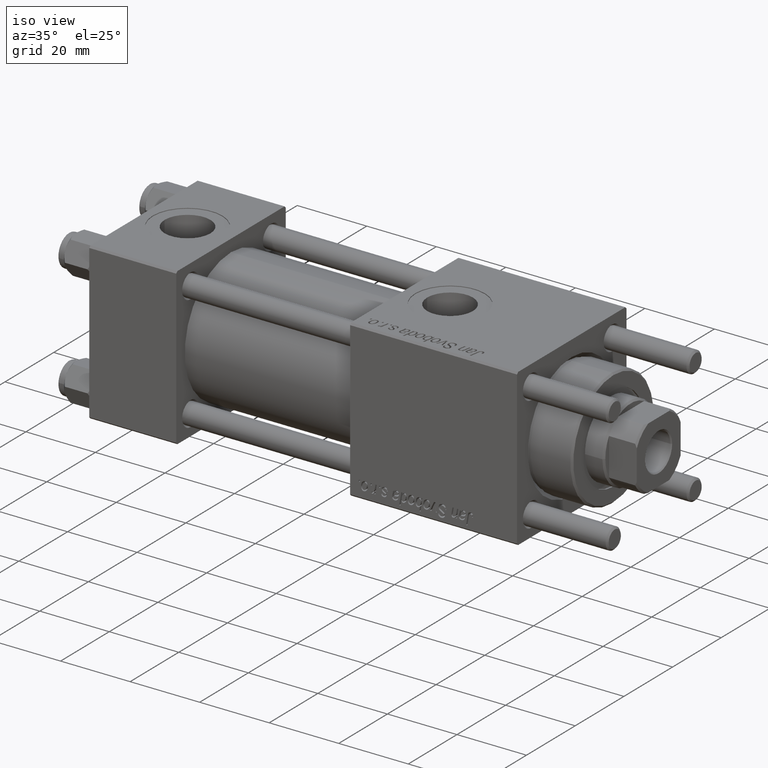
[diagram: clean part render]
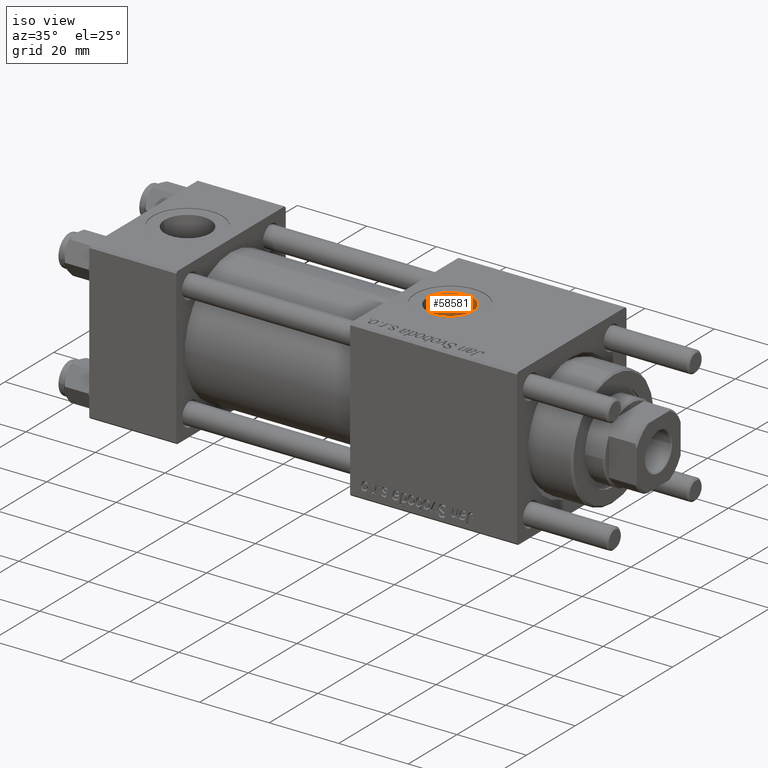
[diagram: same view with one face highlighted and labeled with its STEP entity id]
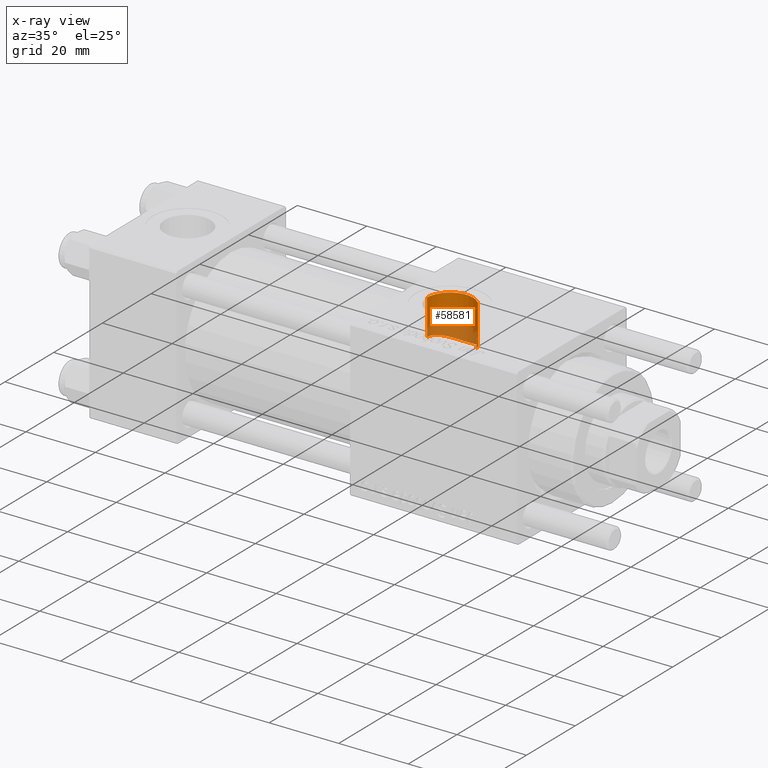
[diagram: x-ray of the same camera — body ghosted, the highlighted face saturated]
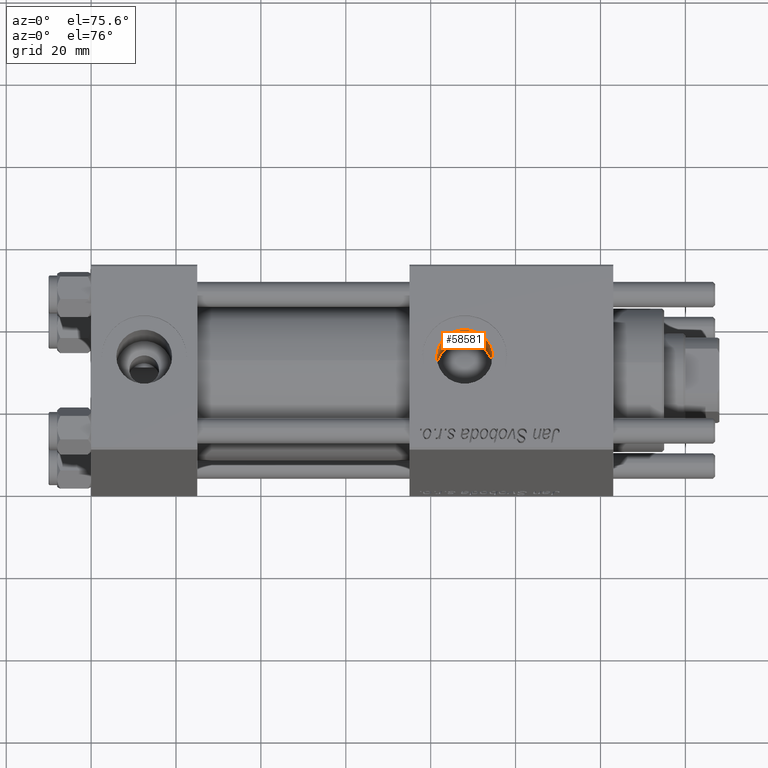
[diagram: same view with one face highlighted and labeled with its STEP entity id]
A machine part, iso view. The second image highlights one B-rep face of the part: STEP entity #58581.
The next image is the same camera in x-ray: the body ghosted, the highlighted face saturated — about 31% of this face is hidden behind the body in this view.
A second angle (auxiliary view) of the same face is appended — the face is thin or edge-on in the first view.
In plain terms, the highlighted cylindrical surface (edge-blend (fillet) strip) has radius 6.58 mm, axis along (0, 0, -1).
Its self-contained STEP definition (entity closure, byte-faithful):
#13 = LINE ( 'NONE', #45007, #16493 ) ;
#990 = ORIENTED_EDGE ( 'NONE', *, *, #28136, .F. ) ;
#1307 = CARTESIAN_POINT ( 'NONE',  ( 82.16614062154590670, 3.049694619472453017, 11.60741639897010735 ) ) ;
#2774 = CARTESIAN_POINT ( 'NONE',  ( 84.48443970993218954, 5.565459456558937035, 10.63203912863488831 ) ) ;
#3056 = CARTESIAN_POINT ( 'NONE',  ( 82.78475287781570557, 4.030653862891778516, 11.30711776153493808 ) ) ;
#3466 = DIRECTION ( 'NONE',  ( 0.000000000000000000, 0.000000000000000000, -1.000000000000000000 ) ) ;
#4132 = CARTESIAN_POINT ( 'NONE',  ( 91.88215370346611621, 5.326621984685210087, 10.75555448901162414 ) ) ;
#4430 = CARTESIAN_POINT ( 'NONE',  ( 87.82138093783677846, 6.589573402368412047, 10.02884697551796478 ) ) ;
#4509 = EDGE_CURVE ( 'NONE', #15227, #45769, #30151, .T. ) ;
#5520 = AXIS2_PLACEMENT_3D ( 'NONE', #29513, #47561, #33671 ) ;
#5747 = CARTESIAN_POINT ( 'NONE',  ( 81.70724907846415874, 1.963001504588604673, 11.84432785252562326 ) ) ;
#6236 = CARTESIAN_POINT ( 'NONE',  ( 94.58000000000001251, 0.6476041116638452388, 16.50000000000000000 ) ) ;
#7498 = CARTESIAN_POINT ( 'NONE',  ( 91.23583201536588660, 5.742247844999425865, 10.53951819678818680 ) ) ;
#7632 = B_SPLINE_CURVE_WITH_KNOTS ( 'NONE', 3,
 ( #50755, #10177, #28267, #46319, #5747, #23822, #41871, #1307, #19379, #31398, #3056, #22490, #31690, #26646, #22783, #2774, #18052, #57227, #30311, #48355, #16679, #56940, #34461, #36128, #4430, #17759, #44702, #48061, #49443, #21123, #7498, #4132, #13310, #53868, #40273, #40561, #20833, #58304, #25570, #8867 ),
 .UNSPECIFIED., .F., .F.,
 ( 4, 2, 2, 2, 2, 2, 2, 2, 2, 2, 2, 2, 2, 2, 2, 2, 2, 2, 2, 4 ),
 ( 0.01908272948376852837, 0.02027211068882234235, 0.02146149189387615633, 0.02205618249640306158, 0.02265087309892997031, 0.02384025430398376347, 0.02502963550903755663, 0.02562432611156446882, 0.02621901671409138102, 0.02740839791914520540, 0.02800308852167211413, 0.02859777912419902285, 0.02978716032925284724, 0.03097654153430666815, 0.03216592273936048907, 0.03335530394441431346, 0.03454468514946813784, 0.03573406635452195529, 0.03692344755957577968, 0.03811282876462960406 ),
 .UNSPECIFIED. ) ;
#8306 = CARTESIAN_POINT ( 'NONE',  ( 88.00000000000001421, -5.204170427930420494E-15, 22.29999999999999716 ) ) ;
#8422 = ORIENTED_EDGE ( 'NONE', *, *, #17017, .F. ) ;
#8867 = CARTESIAN_POINT ( 'NONE',  ( 94.30000000000001137, 1.899052395275078853, 11.84878052796995718 ) ) ;
#9958 = AXIS2_PLACEMENT_3D ( 'NONE', #8306, #48583, #26082 ) ;
#10177 = CARTESIAN_POINT ( 'NONE',  ( 81.42000000000004434, 0.3976591527617308608, 12.00000000000000533 ) ) ;
#11103 = ORIENTED_EDGE ( 'NONE', *, *, #30535, .F. ) ;
#12786 = VERTEX_POINT ( 'NONE', #34764 ) ;
#13139 = EDGE_CURVE ( 'NONE', #12786, #56823, #13, .T. ) ;
#13310 = CARTESIAN_POINT ( 'NONE',  ( 92.18812012102893050, 5.089576879915268748, 10.87095059937355934 ) ) ;
#13351 = DIRECTION ( 'NONE',  ( 0.000000000000000000, 0.000000000000000000, -1.000000000000000000 ) ) ;
#13931 = LINE ( 'NONE', #23120, #41058 ) ;
#15227 = VERTEX_POINT ( 'NONE', #53999 ) ;
#15405 = CARTESIAN_POINT ( 'NONE',  ( 94.58000000000001251, 2.020172399822898567E-15, 16.50000000000000000 ) ) ;
#15777 = VERTEX_POINT ( 'NONE', #40485 ) ;
#16493 = VECTOR ( 'NONE', #17492, 1000.000000000000000 ) ;
#16679 = CARTESIAN_POINT ( 'NONE',  ( 86.25189730832173041, 6.346629913135778622, 10.18446595840853597 ) ) ;
#17017 = EDGE_CURVE ( 'NONE', #12786, #15777, #27938, .T. ) ;
#17492 = DIRECTION ( 'NONE',  ( 0.000000000000000000, 0.000000000000000000, -1.000000000000000000 ) ) ;
#17759 = CARTESIAN_POINT ( 'NONE',  ( 88.61588198934801142, 6.563160196869033847, 10.04615237361005953 ) ) ;
#18052 = CARTESIAN_POINT ( 'NONE',  ( 84.65070684754140018, 5.667099199368138329, 10.57805895296173126 ) ) ;
#19379 = CARTESIAN_POINT ( 'NONE',  ( 82.25859302551884866, 3.220243119365621798, 11.56113513882421096 ) ) ;
#20344 = CARTESIAN_POINT ( 'NONE',  ( 94.58000000000001251, 2.020172399822898567E-15, 16.50000000000000000 ) ) ;
#20833 = CARTESIAN_POINT ( 'NONE',  ( 93.68108973531616357, 3.342884759177825238, 11.53059896909529591 ) ) ;
#21123 = CARTESIAN_POINT ( 'NONE',  ( 90.89150051817900078, 5.923651265023259782, 10.43747821104793339 ) ) ;
#22490 = CARTESIAN_POINT ( 'NONE',  ( 83.29103396094789957, 4.612007366749330650, 11.08271043945085843 ) ) ;
#22783 = CARTESIAN_POINT ( 'NONE',  ( 84.16489446748850867, 5.350277438619694514, 10.74193308139748204 ) ) ;
#23120 = CARTESIAN_POINT ( 'NONE',  ( 94.58000000000001251, -4.398352834091461452E-15, 45.29999999999999005 ) ) ;
#23822 = CARTESIAN_POINT ( 'NONE',  ( 81.91700611386447406, 2.516447426058158410, 11.73468626117324298 ) ) ;
#24128 = VECTOR ( 'NONE', #3466, 1000.000000000000000 ) ;
#24171 = VERTEX_POINT ( 'NONE', #36917 ) ;
#25397 = LINE ( 'NONE', #53193, #24128 ) ;
#25570 = CARTESIAN_POINT ( 'NONE',  ( 94.18483796286322729, 2.281096005955299155, 11.78754883984398028 ) ) ;
#26059 = ORIENTED_EDGE ( 'NONE', *, *, #50789, .T. ) ;
#26082 = DIRECTION ( 'NONE',  ( 1.000000000000000000, 0.000000000000000000, 0.000000000000000000 ) ) ;
#26646 = CARTESIAN_POINT ( 'NONE',  ( 84.01097073899009615, 5.236455063200054383, 10.79801533958693049 ) ) ;
#27938 = CIRCLE ( 'NONE', #9958, 6.580000000000002736 ) ;
#28136 = EDGE_CURVE ( 'NONE', #15777, #45769, #13931, .T. ) ;
#28267 = CARTESIAN_POINT ( 'NONE',  ( 81.45705646777146569, 0.8024769132757282319, 11.97956798721945937 ) ) ;
#28749 = CARTESIAN_POINT ( 'NONE',  ( 94.30000000000001137, 1.899052395275078853, 16.39035081991841025 ) ) ;
#29513 = CARTESIAN_POINT ( 'NONE',  ( 88.00000000000001421, -5.204170427930420494E-15, 45.29999999999999005 ) ) ;
#30151 = B_SPLINE_CURVE_WITH_KNOTS ( 'NONE', 3,
 ( #28749, #38221, #6236, #15405 ),
 .UNSPECIFIED., .F., .F.,
 ( 4, 4 ),
 ( 0.000000000000000000, 0.001922561461481083313 ),
 .UNSPECIFIED. ) ;
#30311 = CARTESIAN_POINT ( 'NONE',  ( 85.51128222741164109, 6.103612828859660944, 10.33283268697370794 ) ) ;
#30535 = EDGE_CURVE ( 'NONE', #15227, #24171, #25397, .T. ) ;
#31398 = CARTESIAN_POINT ( 'NONE',  ( 82.55681353800792976, 3.717176390455099622, 11.41498337564068599 ) ) ;
#31690 = CARTESIAN_POINT ( 'NONE',  ( 83.56581515316379694, 4.876481215027403060, 10.96769431425572172 ) ) ;
#33671 = DIRECTION ( 'NONE',  ( -1.000000000000000000, 0.000000000000000000, 0.000000000000000000 ) ) ;
#34461 = CARTESIAN_POINT ( 'NONE',  ( 86.83419489992905937, 6.478967816313746297, 10.10070273480327430 ) ) ;
#34764 = CARTESIAN_POINT ( 'NONE',  ( 81.42000000000000171, -5.204170427930420494E-15, 22.29999999999999716 ) ) ;
#36128 = CARTESIAN_POINT ( 'NONE',  ( 87.42561790000441135, 6.566992248200678617, 10.04387831561290234 ) ) ;
#36917 = CARTESIAN_POINT ( 'NONE',  ( 94.30000000000001137, 1.899052395275078853, 11.84878052796995718 ) ) ;
#38120 = FACE_OUTER_BOUND ( 'NONE', #38413, .T. ) ;
#38221 = CARTESIAN_POINT ( 'NONE',  ( 94.48644965059656897, 1.280516118087120070, 16.46201693687124745 ) ) ;
#38413 = EDGE_LOOP ( 'NONE', ( #990, #8422, #51125, #26059, #11103, #44626 ) ) ;
#40273 = CARTESIAN_POINT ( 'NONE',  ( 93.00866761081064737, 4.284465530078829687, 11.21374664850203651 ) ) ;
#40485 = CARTESIAN_POINT ( 'NONE',  ( 94.58000000000001251, -4.398352834091461452E-15, 22.29999999999999716 ) ) ;
#40561 = CARTESIAN_POINT ( 'NONE',  ( 93.47237423914735643, 3.673760512163765313, 11.42839632120319138 ) ) ;
#41058 = VECTOR ( 'NONE', #13351, 1000.000000000000000 ) ;
#41871 = CARTESIAN_POINT ( 'NONE',  ( 81.99551268624995259, 2.698274377936877855, 11.69410398929686501 ) ) ;
#43406 = CYLINDRICAL_SURFACE ( 'NONE', #5520, 6.580000000000002736 ) ;
#43825 = CARTESIAN_POINT ( 'NONE',  ( 81.42000000000000171, 1.469576107744199801E-15, 12.00000000000000178 ) ) ;
#44626 = ORIENTED_EDGE ( 'NONE', *, *, #4509, .T. ) ;
#44702 = CARTESIAN_POINT ( 'NONE',  ( 89.01891393464315172, 6.512687558946026911, 10.07943174470872272 ) ) ;
#45007 = CARTESIAN_POINT ( 'NONE',  ( 81.42000000000000171, -5.204170427930420494E-15, 45.29999999999999005 ) ) ;
#45769 = VERTEX_POINT ( 'NONE', #20344 ) ;
#46319 = CARTESIAN_POINT ( 'NONE',  ( 81.60104442533068436, 1.583491968934688687, 11.90153652017558450 ) ) ;
#47561 = DIRECTION ( 'NONE',  ( 0.000000000000000000, 0.000000000000000000, -1.000000000000000000 ) ) ;
#48061 = CARTESIAN_POINT ( 'NONE',  ( 89.79279569586574894, 6.343435066235461051, 10.18679906040885719 ) ) ;
#48355 = CARTESIAN_POINT ( 'NONE',  ( 86.06381098789942996, 6.291694806526731298, 10.21860835373034782 ) ) ;
#48583 = DIRECTION ( 'NONE',  ( -0.000000000000000000, -0.000000000000000000, -1.000000000000000000 ) ) ;
#49443 = CARTESIAN_POINT ( 'NONE',  ( 90.16689331473169489, 6.225350826966485229, 10.26038999243691663 ) ) ;
#50755 = CARTESIAN_POINT ( 'NONE',  ( 81.42000000000000171, 1.469576107744199801E-15, 12.00000000000000178 ) ) ;
#50789 = EDGE_CURVE ( 'NONE', #56823, #24171, #7632, .T. ) ;
#51125 = ORIENTED_EDGE ( 'NONE', *, *, #13139, .T. ) ;
#53193 = CARTESIAN_POINT ( 'NONE',  ( 94.30000000000001137, 1.899052395275078853, 45.29999999999999005 ) ) ;
#53868 = CARTESIAN_POINT ( 'NONE',  ( 92.75223196117465818, 4.567322448867138007, 11.10049212416560493 ) ) ;
#53999 = CARTESIAN_POINT ( 'NONE',  ( 94.30000000000001137, 1.899052395275078853, 16.39035081991841025 ) ) ;
#56823 = VERTEX_POINT ( 'NONE', #43825 ) ;
#56940 = CARTESIAN_POINT ( 'NONE',  ( 86.63652304892134737, 6.440225530122367203, 10.12553965146808110 ) ) ;
#57227 = CARTESIAN_POINT ( 'NONE',  ( 85.15847559875078332, 5.947407073964698476, 10.42466916922575493 ) ) ;
#58304 = CARTESIAN_POINT ( 'NONE',  ( 94.03738513764136542, 2.645683237586368364, 11.71024983958922583 ) ) ;
#58581 = ADVANCED_FACE ( 'NONE', ( #38120 ), #43406, .F. ) ;